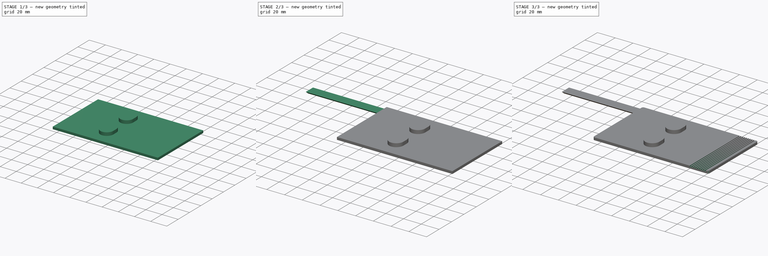
[diagram: build sequence overview — one tinted view per stage of 3, left to right]
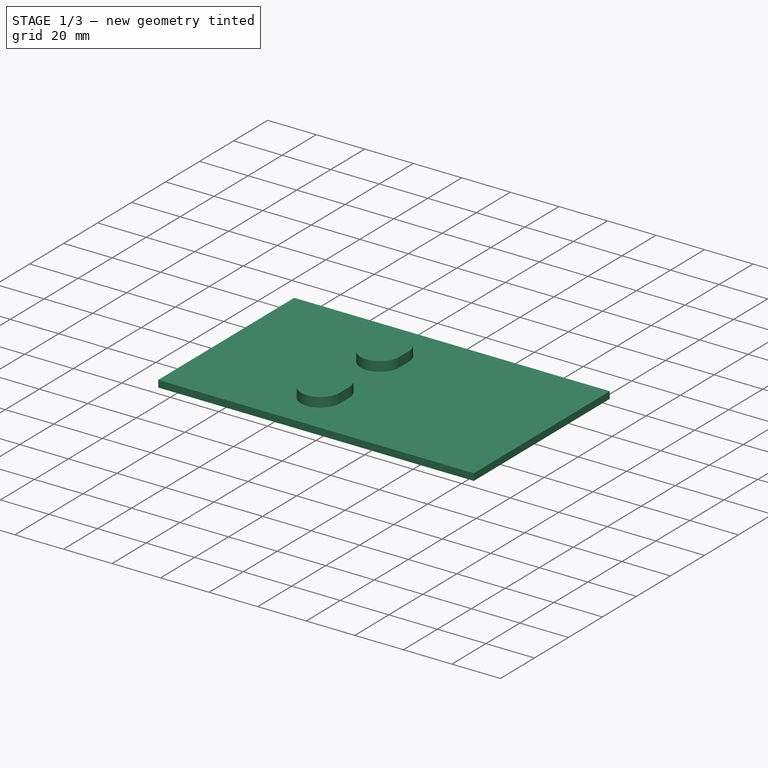
[diagram: stage 1 of 3 — iso view after this stage's code; geometry added in this stage tinted green]
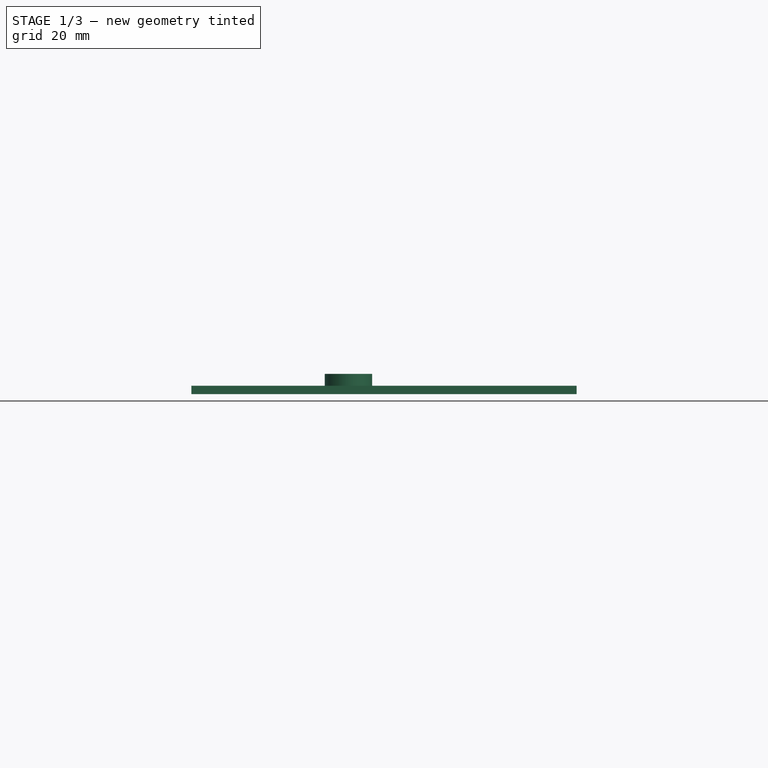
[diagram: stage 1 of 3 — front view after this stage's code; geometry added in this stage tinted green]
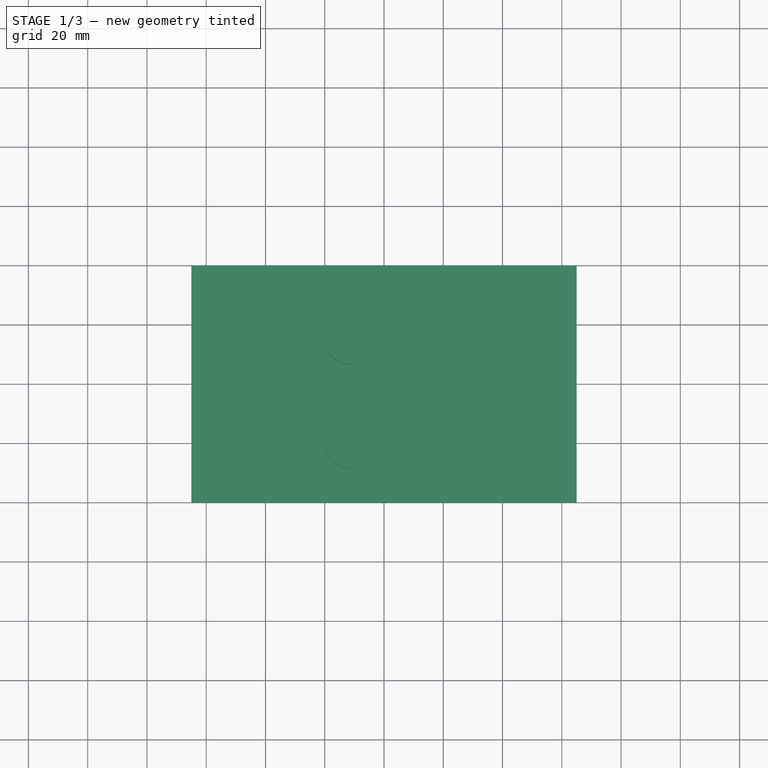
[diagram: stage 1 of 3 — top view after this stage's code; geometry added in this stage tinted green]
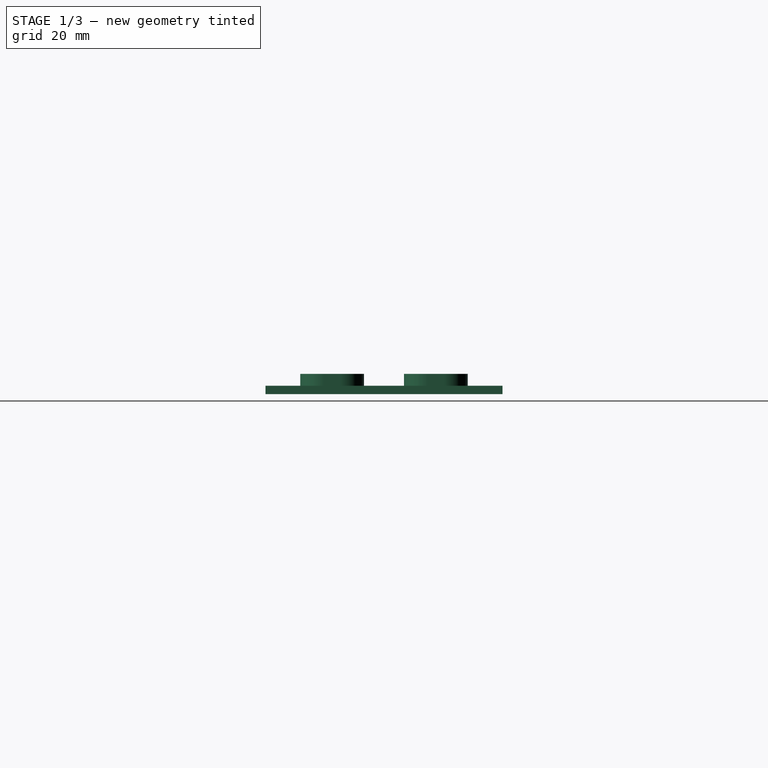
[diagram: stage 1 of 3 — right view after this stage's code; geometry added in this stage tinted green]
FCSTD DOCUMENT  (FreeCAD 0.20R29177 (Git))
Label: Holder02
License: All rights reserved
LicenseURL: http://en.wikipedia.org/wiki/All_rights_reserved
objects: Sketcher::SketchObject×4, PartDesign::Pad×3, PartDesign::Fillet×1, PartDesign::Pocket×1, PartDesign::Body×1
note: 15 computed .brp shape members not serialized (recipe doc carries the construction recipe); baked Part::Feature solids carry a one-line shape summary decoded from their .brp

FEATURE [Sketcher::SketchObject] Sketch  label="Base001"
  FullyConstrained = false
  MapMode = 5
  Support = -> [XY_Plane]
  sketch-geometry (4):
    g0: LineSegment StartX=-65 StartY=40 StartZ=0 EndX=65 EndY=40 EndZ=0
    g1: LineSegment StartX=65 StartY=40 StartZ=0 EndX=65 EndY=-40 EndZ=0
    g2: LineSegment StartX=65 StartY=-40 StartZ=0 EndX=-65 EndY=-40 EndZ=0
    g3: LineSegment StartX=-65 StartY=-40 StartZ=0 EndX=-65 EndY=40 EndZ=0
  constraints (10):
    c: Coincident(g0,g1)
    c: Coincident(g1,g2)
    c: Coincident(g2,g3)
    c: Coincident(g3,g0)
    c: Horizontal(g2)
    c: Vertical(g3)
    c: Symmetric(g0,g1,g-1)
    c: Symmetric(g0,g0,g-2)
    c: DistanceX(g0,g0) = 130
    c: DistanceY(g3,g3) = 80
FEATURE [PartDesign::Pad] Pad  label="Base"
  AllowMultiFace = false
  Direction = (1,1,1)
  Length = 2.85
  Length2 = 100
  Profile = -> Sketch
  Type = 0
FEATURE [Sketcher::SketchObject] Sketch001  label="Support001"
  ExternalGeometry = -> [Pad]
  FullyConstrained = false
  MapMode = 5
  Placement = pos=(0,0,2.85) rot=(0,0,1;0rad)
  Support = -> [Pad]
  sketch-geometry (11):
    g0: GeomPoint X=-12 Y=14.75 Z=0
    g1: ArcOfCircle CenterX=-12 CenterY=14.75 CenterZ=0 NormalX=0 NormalY=0 NormalZ=1 AngleXU=0 Radius=8 StartAngle=3.14159 EndAngle=6.28319
    g2: ArcOfCircle CenterX=-12 CenterY=20.25 CenterZ=0 NormalX=0 NormalY=0 NormalZ=1 AngleXU=0 Radius=8 StartAngle=6.28318 EndAngle=9.42478
    g3: LineSegment StartX=-20 StartY=20.25 StartZ=0 EndX=-20 EndY=14.75 EndZ=0
    g4: LineSegment StartX=-4 StartY=20.25 StartZ=0 EndX=-4 EndY=14.75 EndZ=0
    g5: GeomPoint X=-12 Y=-20.25 Z=0
    g6: ArcOfCircle CenterX=-12 CenterY=-20.25 CenterZ=0 NormalX=0 NormalY=0 NormalZ=1 AngleXU=0 Radius=8 StartAngle=3.14159 EndAngle=6.28319
    g7: GeomPoint X=-12 Y=-14.75 Z=0
    g8: ArcOfCircle CenterX=-12 CenterY=-14.75 CenterZ=0 NormalX=0 NormalY=0 NormalZ=1 AngleXU=0 Radius=8 StartAngle=0 EndAngle=3.14159
    g9: LineSegment StartX=-20 StartY=-14.75 StartZ=0 EndX=-20 EndY=-20.25 EndZ=0
    g10: LineSegment StartX=-4 StartY=-14.75 StartZ=0 EndX=-4 EndY=-20.25 EndZ=0
  constraints (31):
    c: DistanceX(g0,g-3) = 77
    c: DistanceY(g-1,g0) = 14.75
    c: Coincident(g1,g0)
    c: Radius(g1) = 8
    c: DistanceX(g2,g-3) = 77
    c: Radius(g2) = 8
    c: Coincident(g2,g3)
    c: Coincident(g1,g3)
    c: Coincident(g2,g4)
    c: Coincident(g4,g1)
    c: DistanceY(g-1,g1) = 14.75
    c: DistanceY(g-1,g1) = 14.75
    c: Coincident(g6,g5)
    c: Equal(g1,g6) = 8.5
    c: Equal(g2,g8) = 8.5
    c: Coincident(g8,g7)
    c: Coincident(g8,g9)
    c: Coincident(g6,g9)
    c: Coincident(g8,g10)
    c: Coincident(g10,g6)
    c: DistanceX(g7,g-3) = 77
    c: DistanceX(g5,g-3) = 77
    c: DistanceY(g8,g-1) = 14.75
    c: DistanceY(g7,g-1) = 14.75
    c: DistanceY(g8,g-1) = 14.75
    c: DistanceY(g4,g4) = 5.5
    c: DistanceY(g10,g10) = 5.5
    c: Vertical(g3)
    c: Vertical(g4)
    c: Vertical(g9)
    c: Vertical(g10)
FEATURE [PartDesign::Pad] Pad001  label="Supports"
  AllowMultiFace = false
  BaseFeature = -> Pad
  Direction = (1,1,1)
  Length = 4
  Length2 = 100
  Profile = -> Sketch001
  Type = 0
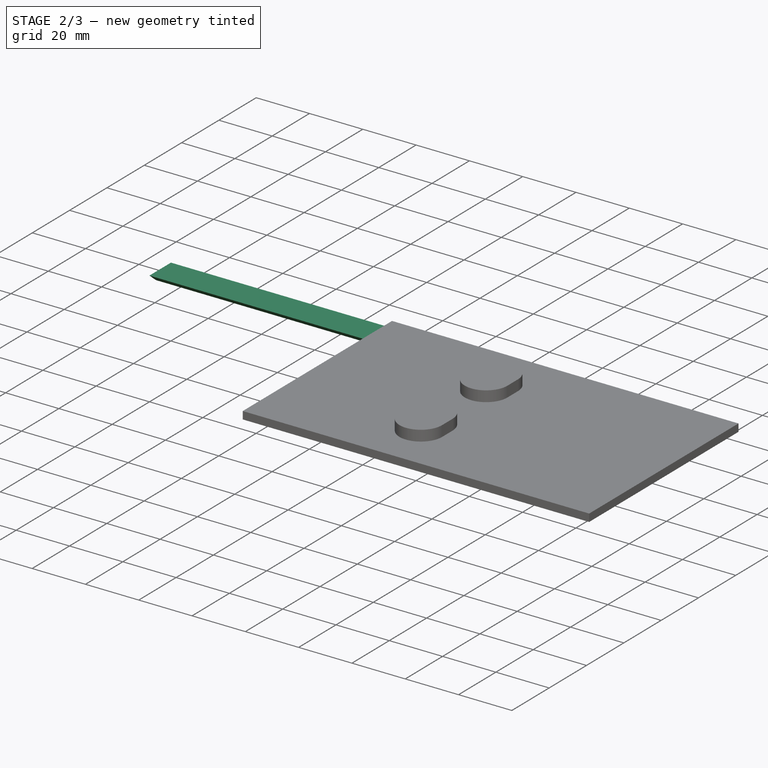
[diagram: stage 2 of 3 — iso view after this stage's code; geometry added in this stage tinted green]
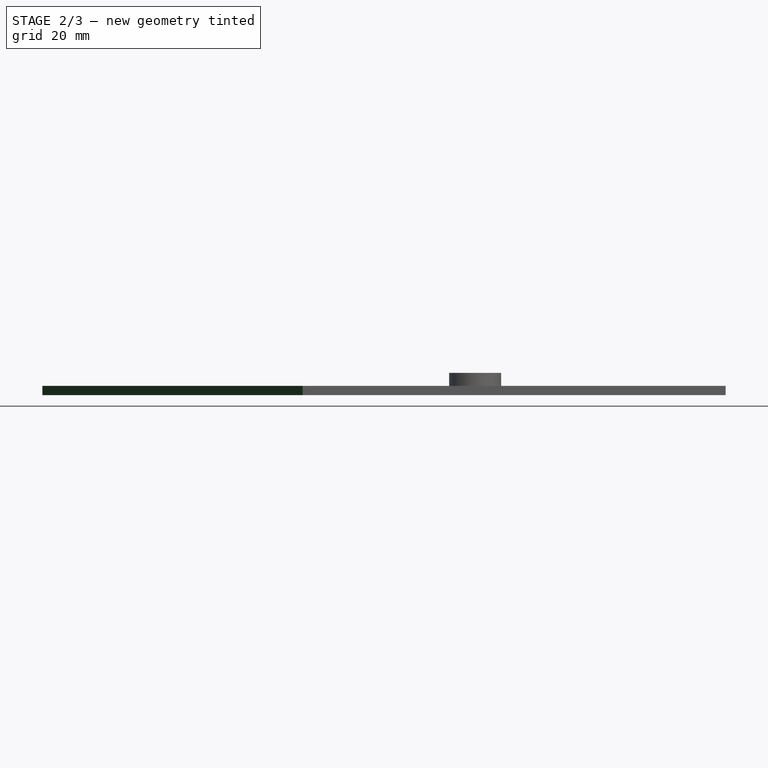
[diagram: stage 2 of 3 — front view after this stage's code; geometry added in this stage tinted green]
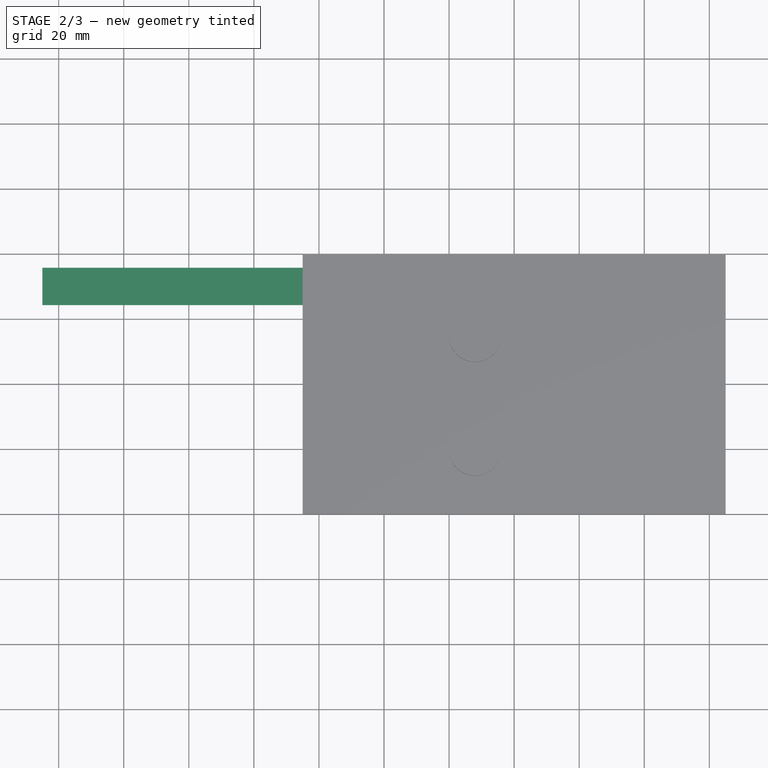
[diagram: stage 2 of 3 — top view after this stage's code; geometry added in this stage tinted green]
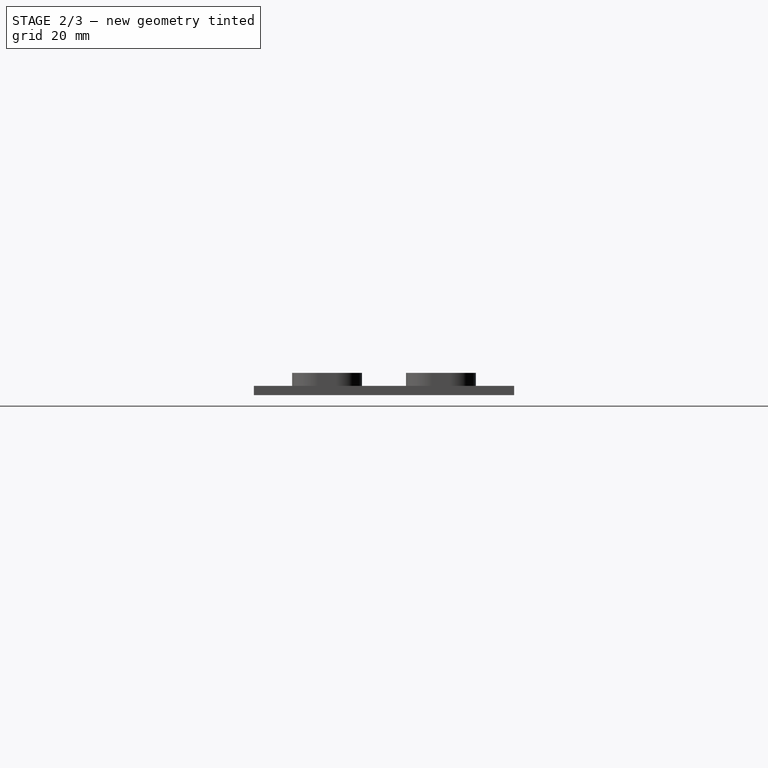
[diagram: stage 2 of 3 — right view after this stage's code; geometry added in this stage tinted green]
FEATURE [Sketcher::SketchObject] Sketch002  label="Beam001"
  FullyConstrained = false
  MapMode = 5
  Placement = pos=(-65,0,0) rot=(0.57735,-0.57735,-0.57735;2.0944rad)
  Support = -> [Pad001]
  expr: Constraints[10] = (11.5 - 4.6) / 2
  sketch-geometry (4):
    g0: LineSegment StartX=-35.7654 StartY=2.85 StartZ=0 EndX=-24.2654 EndY=2.85 EndZ=0
    g1: LineSegment StartX=-24.2654 StartY=2.85 StartZ=0 EndX=-27.7154 EndY=0 EndZ=0
    g2: LineSegment StartX=-27.7154 StartY=0 StartZ=0 EndX=-32.3154 EndY=0 EndZ=0
    g3: LineSegment StartX=-32.3154 StartY=0 StartZ=0 EndX=-35.7654 EndY=2.85 EndZ=0
  constraints (11):
    c: Coincident(g0,g1)
    c: Coincident(g1,g2)
    c: Coincident(g2,g3)
    c: Coincident(g3,g0)
    c: PointOnObject(g1,g-1)
    c: DistanceY(g3,g3) = 2.85
    c: DistanceX(g0,g0) = 11.5
    c: DistanceX(g2,g2) = 4.6
    c: Horizontal(g0)
    c: Horizontal(g2)
    c: DistanceX(g0,g2) = 3.45
FEATURE [PartDesign::Pad] Pad002  label="Beam"
  AllowMultiFace = false
  BaseFeature = -> Pad001
  Direction = (1,1,1)
  Length = 80
  Length2 = 100
  Profile = -> Sketch002
  Type = 0
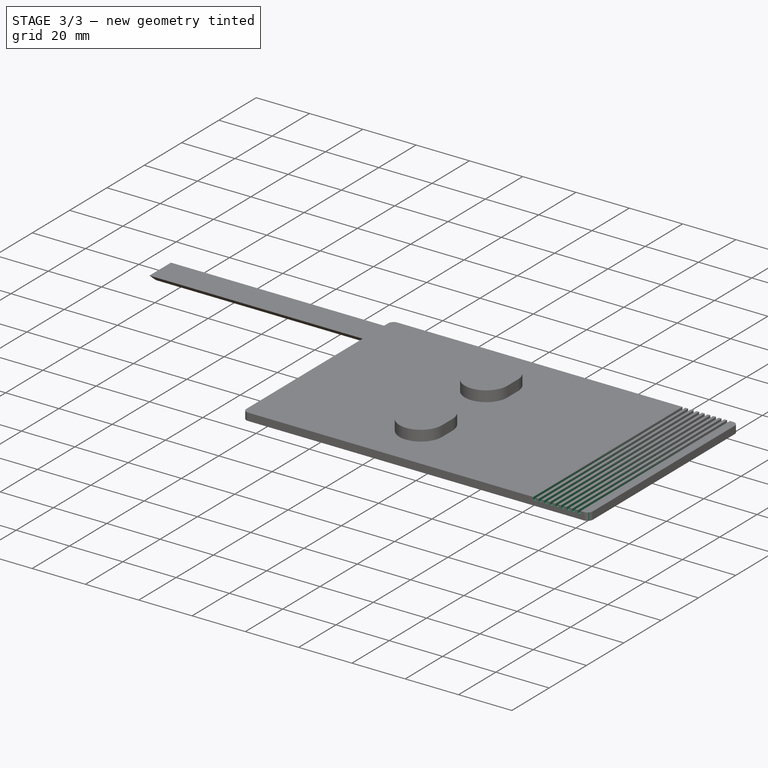
[diagram: stage 3 of 3 — iso view after this stage's code; geometry added in this stage tinted green]
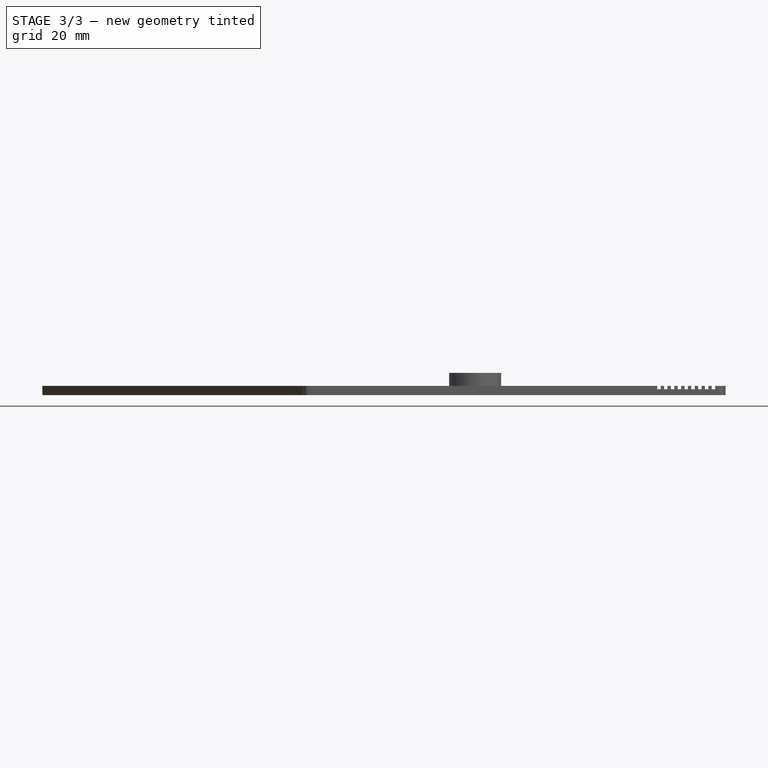
[diagram: stage 3 of 3 — front view after this stage's code; geometry added in this stage tinted green]
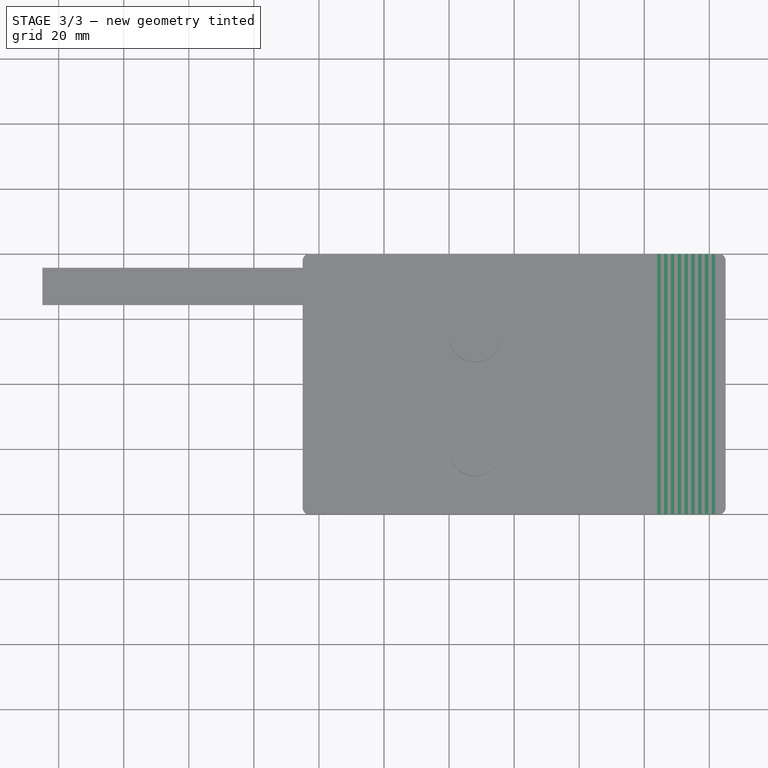
[diagram: stage 3 of 3 — top view after this stage's code; geometry added in this stage tinted green]
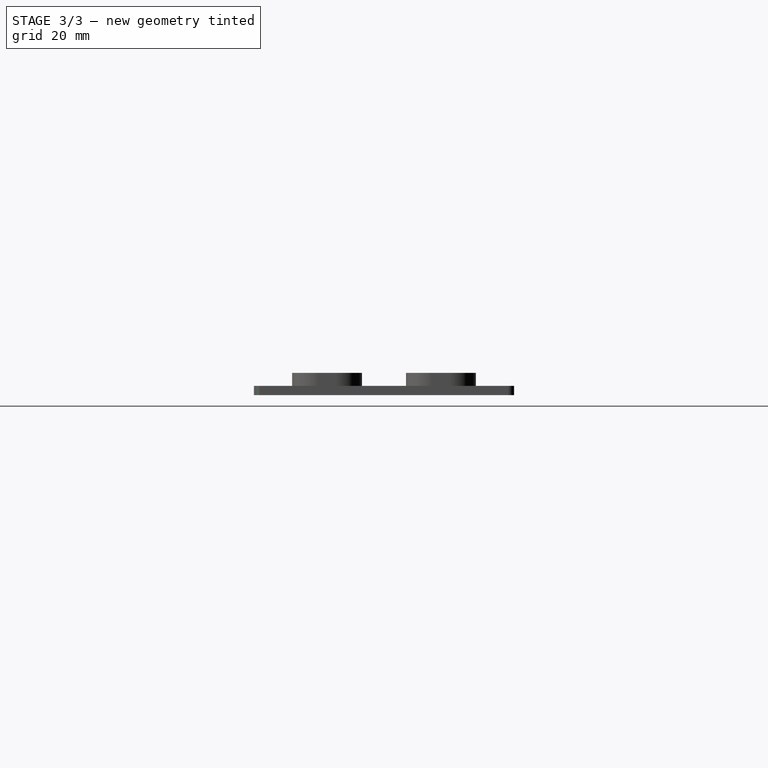
[diagram: stage 3 of 3 — right view after this stage's code; geometry added in this stage tinted green]
FEATURE [PartDesign::Fillet] Fillet  label="SoftEdges"
  Base = -> Pad002 [Edge28,Edge8,Edge2,Edge1]
  BaseFeature = -> Pad002
  Radius = 2
  SupportTransform = false
  UseAllEdges = false
FEATURE [Sketcher::SketchObject] Sketch003  label="Antislip001"
  ExternalGeometry = -> [Fillet]
  FullyConstrained = false
  MapMode = 5
  Placement = pos=(0,0,2.85) rot=(0,0,1;0rad)
  Support = -> [Fillet]
  sketch-geometry (44):
    g0: LineSegment StartX=44 StartY=40 StartZ=0 EndX=45.05 EndY=40 EndZ=0
    g1: LineSegment StartX=45.05 StartY=40 StartZ=0 EndX=45.05 EndY=-40 EndZ=0
    g2: LineSegment StartX=45.05 StartY=-40 StartZ=0 EndX=44 EndY=-40 EndZ=0
    g3: LineSegment StartX=44 StartY=-40 StartZ=0 EndX=44 EndY=40 EndZ=0
    g4: LineSegment StartX=46.0919 StartY=40 StartZ=0 EndX=47.1419 EndY=40 EndZ=0
    g5: LineSegment StartX=47.1419 StartY=40 StartZ=0 EndX=47.1419 EndY=-40 EndZ=0
    g6: LineSegment StartX=47.1419 StartY=-40 StartZ=0 EndX=46.0919 EndY=-40 EndZ=0
    g7: LineSegment StartX=46.0919 StartY=-40 StartZ=0 EndX=46.0919 EndY=40 EndZ=0
    g8: LineSegment StartX=44 StartY=40 StartZ=0 EndX=46.0919 EndY=40 EndZ=0
    g9: LineSegment StartX=48.1838 StartY=40 StartZ=0 EndX=49.2338 EndY=40 EndZ=0
    g10: LineSegment StartX=49.2338 StartY=40 StartZ=0 EndX=49.2338 EndY=-40 EndZ=0
    g11: LineSegment StartX=49.2338 StartY=-40 StartZ=0 EndX=48.1838 EndY=-40 EndZ=0
    g12: LineSegment StartX=48.1838 StartY=-40 StartZ=0 EndX=48.1838 EndY=40 EndZ=0
    g13: LineSegment StartX=46.0919 StartY=40 StartZ=0 EndX=48.1838 EndY=40 EndZ=0
    g14: LineSegment StartX=50.2757 StartY=40 StartZ=0 EndX=51.3257 EndY=40 EndZ=0
    g15: LineSegment StartX=51.3257 StartY=40 StartZ=0 EndX=51.3257 EndY=-40 EndZ=0
    g16: LineSegment StartX=51.3257 StartY=-40 StartZ=0 EndX=50.2757 EndY=-40 EndZ=0
    g17: LineSegment StartX=50.2757 StartY=-40 StartZ=0 EndX=50.2757 EndY=40 EndZ=0
    g18: LineSegment StartX=48.1838 StartY=40 StartZ=0 EndX=50.2757 EndY=40 EndZ=0
    g19: LineSegment StartX=52.3676 StartY=40 StartZ=0 EndX=53.4176 EndY=40 EndZ=0
    g20: LineSegment StartX=53.4176 StartY=40 StartZ=0 EndX=53.4176 EndY=-40 EndZ=0
    g21: LineSegment StartX=53.4176 StartY=-40 StartZ=0 EndX=52.3676 EndY=-40 EndZ=0
    g22: LineSegment StartX=52.3676 StartY=-40 StartZ=0 EndX=52.3676 EndY=40 EndZ=0
    g23: LineSegment StartX=50.2757 StartY=40 StartZ=0 EndX=52.3676 EndY=40 EndZ=0
    g24: LineSegment StartX=54.4595 StartY=40 StartZ=0 EndX=55.5095 EndY=40 EndZ=0
    g25: LineSegment StartX=55.5095 StartY=40 StartZ=0 EndX=55.5095 EndY=-40 EndZ=0
    g26: LineSegment StartX=55.5095 StartY=-40 StartZ=0 EndX=54.4595 EndY=-40 EndZ=0
    g27: LineSegment StartX=54.4595 StartY=-40 StartZ=0 EndX=54.4595 EndY=40 EndZ=0
    g28: LineSegment StartX=52.3676 StartY=40 StartZ=0 EndX=54.4595 EndY=40 EndZ=0
    g29: LineSegment StartX=56.5514 StartY=40 StartZ=0 EndX=57.6014 EndY=40 EndZ=0
    g30: LineSegment StartX=57.6014 StartY=40 StartZ=0 EndX=57.6014 EndY=-40 EndZ=0
    g31: LineSegment StartX=57.6014 StartY=-40 StartZ=0 EndX=56.5514 EndY=-40 EndZ=0
    g32: LineSegment StartX=56.5514 StartY=-40 StartZ=0 EndX=56.5514 EndY=40 EndZ=0
    g33: LineSegment StartX=54.4595 StartY=40 StartZ=0 EndX=56.5514 EndY=40 EndZ=0
    g34: LineSegment StartX=58.6432 StartY=40 StartZ=0 EndX=59.6932 EndY=40 EndZ=0
    g35: LineSegment StartX=59.6932 StartY=40 StartZ=0 EndX=59.6932 EndY=-40 EndZ=0
    g36: LineSegment StartX=59.6932 StartY=-40 StartZ=0 EndX=58.6432 EndY=-40 EndZ=0
    g37: LineSegment StartX=58.6432 StartY=-40 StartZ=0 EndX=58.6432 EndY=40 EndZ=0
    g38: LineSegment StartX=56.5514 StartY=40 StartZ=0 EndX=58.6432 EndY=40 EndZ=0
    g39: LineSegment StartX=60.7351 StartY=40 StartZ=0 EndX=61.7851 EndY=40 EndZ=0
    g40: LineSegment StartX=61.7851 StartY=40 StartZ=0 EndX=61.7851 EndY=-40 EndZ=0
    g41: LineSegment StartX=61.7851 StartY=-40 StartZ=0 EndX=60.7351 EndY=-40 EndZ=0
    g42: LineSegment StartX=60.7351 StartY=-40 StartZ=0 EndX=60.7351 EndY=40 EndZ=0
    g43: LineSegment StartX=58.6432 StartY=40 StartZ=0 EndX=60.7351 EndY=40 EndZ=0
  constraints (123):
    c: Coincident(g0,g1)
    c: Coincident(g1,g2)
    c: Coincident(g2,g3)
    c: Coincident(g3,g0)
    c: Horizontal(g0)
    c: Horizontal(g2)
    c: Vertical(g1)
    c: DistanceX(g0,g0) = 1.05
    c: Symmetric(g0,g2,g-1)
    c: DistanceY(g3,g3) = 80
    c: DistanceX(g0,g-3) = 21
    c: Coincident(g4,g5)
    c: Coincident(g5,g6)
    c: Coincident(g6,g7)
    c: Coincident(g7,g4)
    c: Horizontal(g4)
    c: Horizontal(g6)
    c: Vertical(g5)
    c: Equal(g0,g4) = 1.05
    c: Equal(g3,g7) = 60
    c: Vertical(g7)
    c: Coincident(g0,g8)
    c: Coincident(g4,g8)
    c: Distance(g8) = 2.09189
    c: Angle(g8) = 0
    c: Coincident(g9,g10)
    c: Coincident(g10,g11)
    c: Coincident(g11,g12)
    c: Coincident(g12,g9)
    c: Horizontal(g9)
    c: Horizontal(g11)
    c: Vertical(g10)
    c: Equal(g0,g9) = 1.05
    c: Equal(g3,g12) = 60
    c: Vertical(g12)
    c: Coincident(g4,g13)
    c: Coincident(g9,g13)
    c: Equal(g8,g13)
    c: Parallel(g13,g8)
    c: Coincident(g14,g15)
    c: Coincident(g15,g16)
    c: Coincident(g16,g17)
    c: Coincident(g17,g14)
    c: Horizontal(g14)
    c: Horizontal(g16)
    c: Vertical(g15)
    c: Equal(g0,g14) = 1.05
    c: Equal(g3,g17) = 60
    c: Vertical(g17)
    c: Coincident(g9,g18)
    c: Coincident(g14,g18)
    c: Equal(g8,g18)
    c: Parallel(g18,g8)
    c: Coincident(g19,g20)
    c: Coincident(g20,g21)
    c: Coincident(g21,g22)
    c: Coincident(g22,g19)
    c: Horizontal(g19)
    c: Horizontal(g21)
    c: Vertical(g20)
    c: Equal(g0,g19) = 1.05
    c: Equal(g3,g22) = 60
    c: Vertical(g22)
    c: Coincident(g14,g23)
    c: Coincident(g19,g23)
    c: Equal(g8,g23)
    c: Parallel(g23,g8)
    c: Coincident(g24,g25)
    c: Coincident(g25,g26)
    c: Coincident(g26,g27)
    c: Coincident(g27,g24)
    c: Horizontal(g24)
    c: Horizontal(g26)
    c: Vertical(g25)
    c: Equal(g0,g24) = 1.05
    c: Equal(g3,g27) = 60
    c: Vertical(g27)
    c: Coincident(g19,g28)
    c: Coincident(g24,g28)
    c: Equal(g8,g28)
    c: Parallel(g28,g8)
    c: Coincident(g29,g30)
    c: Coincident(g30,g31)
    c: Coincident(g31,g32)
    c: Coincident(g32,g29)
    c: Horizontal(g29)
    c: Horizontal(g31)
    c: Vertical(g30)
    c: Equal(g0,g29) = 1.05
    c: Equal(g3,g32) = 60
    c: Vertical(g32)
    c: Coincident(g24,g33)
    c: Coincident(g29,g33)
    c: Equal(g8,g33)
    c: Parallel(g33,g8)
    c: Coincident(g34,g35)
    c: Coincident(g35,g36)
    c: Coincident(g36,g37)
    c: Coincident(g37,g34)
    c: Horizontal(g34)
    c: Horizontal(g36)
    c: Vertical(g35)
    c: Equal(g0,g34) = 1.05
    c: Equal(g3,g37) = 60
    c: Vertical(g37)
    c: Coincident(g29,g38)
    c: Coincident(g34,g38)
    c: Equal(g8,g38)
    c: Parallel(g38,g8)
    c: Coincident(g39,g40)
    c: Coincident(g40,g41)
    c: Coincident(g41,g42)
    c: Coincident(g42,g39)
    c: Horizontal(g39)
    c: Horizontal(g41)
    c: Vertical(g40)
    c: Equal(g0,g39) = 1.05
    c: Equal(g3,g42) = 60
    c: Vertical(g42)
    c: Coincident(g34,g43)
    c: Coincident(g39,g43)
    c: Equal(g8,g43)
    c: Parallel(g43,g8)
FEATURE [PartDesign::Pocket] Pocket  label="Antislip"
  AllowMultiFace = false
  BaseFeature = -> Fillet
  Direction = (1,1,1)
  Length = 1.05
  Length2 = 100
  Profile = -> Sketch003
  Type = 0
FEATURE [PartDesign::Body] Body
  Group = -> [Sketch,Pad,Sketch001,Pad001,Sketch002,Pad002,Fillet,Sketch003,Pocket]
  Origin = -> Origin
  Tip = -> Pocket
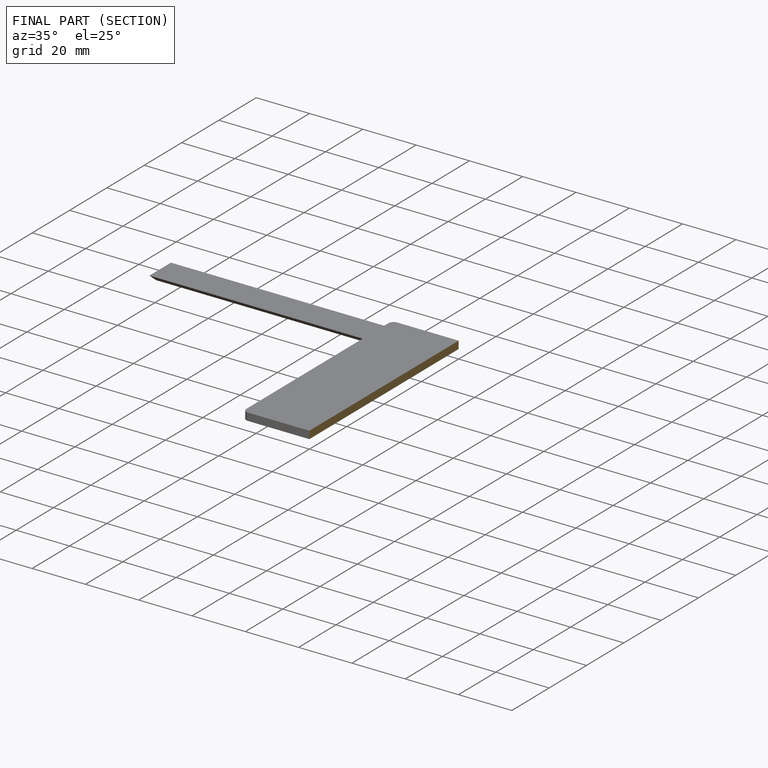
[diagram: finished part — half-section view (interior)]
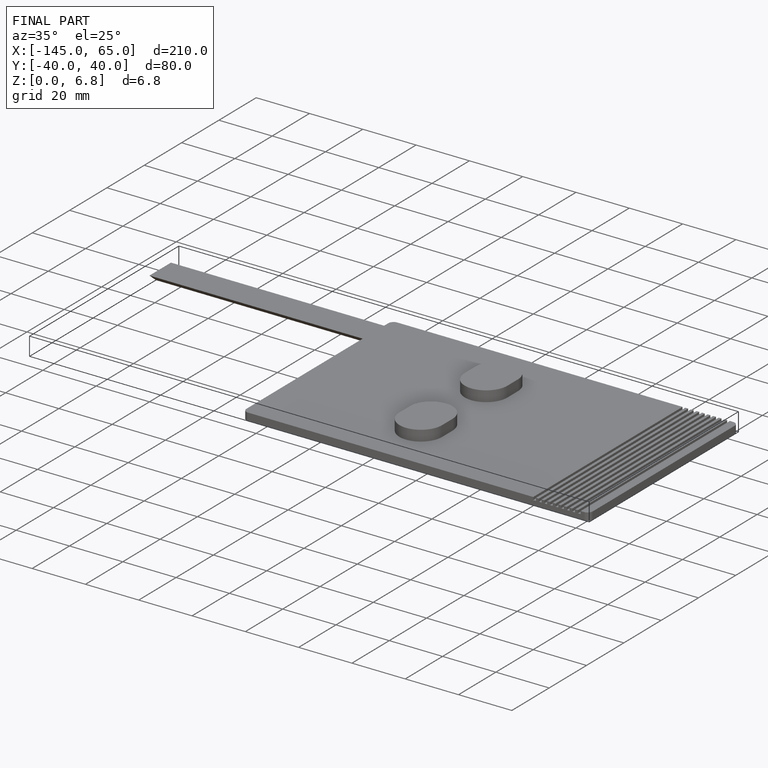
[diagram: finished part — iso view with bounding-box wireframe]
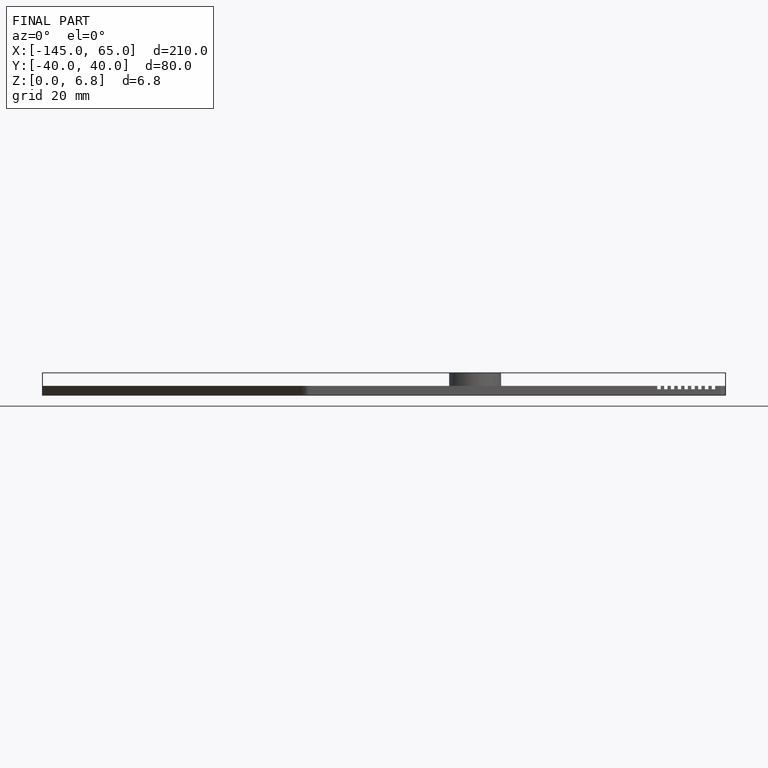
[diagram: finished part — front view with bounding-box wireframe]
